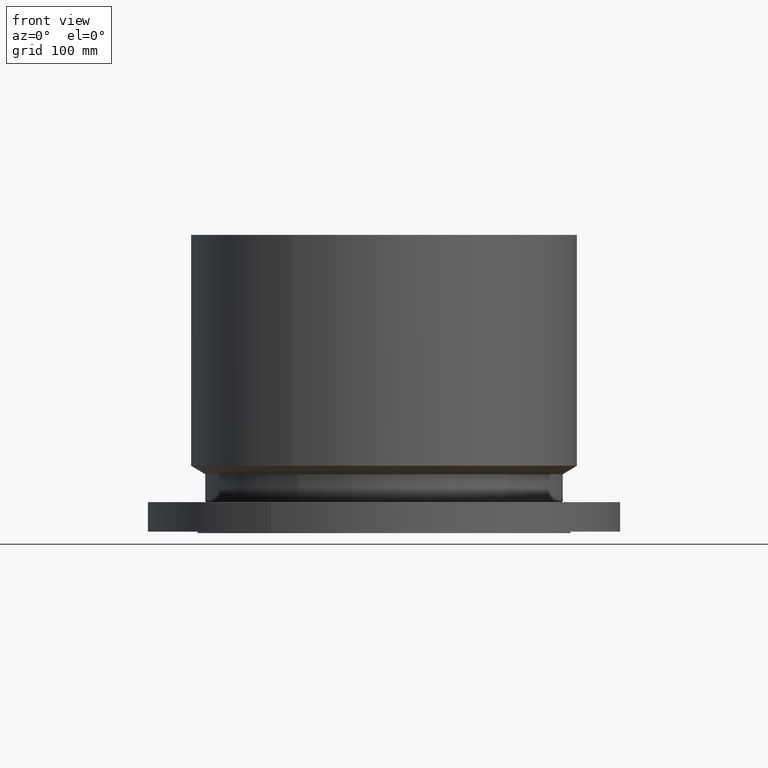
[diagram: clean part render]
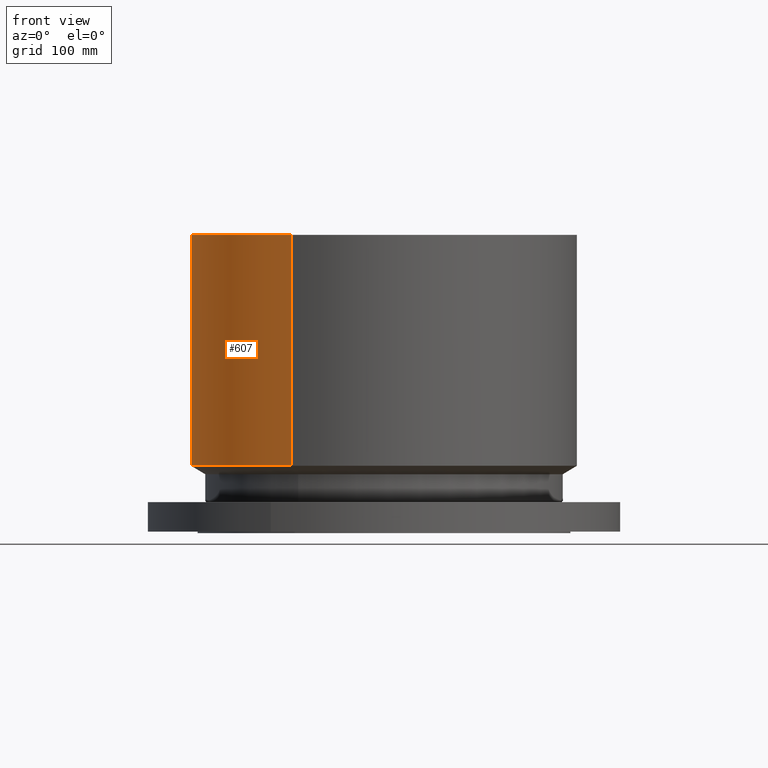
[diagram: same view with one face highlighted and labeled with its STEP entity id]
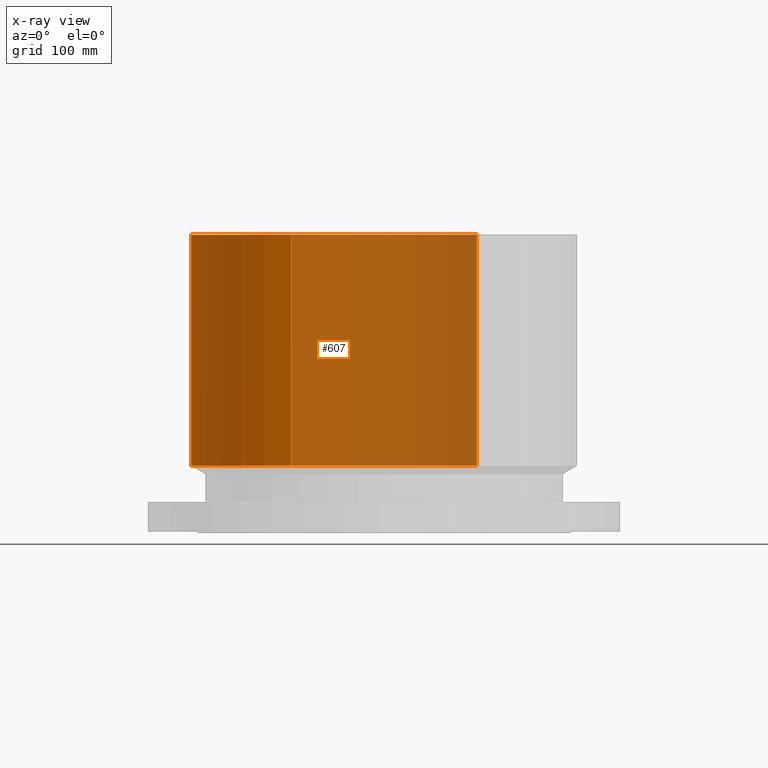
[diagram: x-ray of the same camera — body ghosted, the highlighted face saturated]
A machine part, front view. The second image highlights one B-rep face of the part: STEP entity #607.
The next image is the same camera in x-ray: the body ghosted, the highlighted face saturated — about 65% of this face is hidden behind the body in this view.
In plain terms, the highlighted cylindrical surface (partial cylindrical patch) has radius 197.612 mm, axis along (0, 0, -1).
Its self-contained STEP definition (entity closure, byte-faithful):
#555=AXIS2_PLACEMENT_3D('Circle Axis2P3D',#553,#554,$) ;
#568=AXIS2_PLACEMENT_3D('Cylinder Axis2P3D',#565,#566,#567) ;
#598=AXIS2_PLACEMENT_3D('Circle Axis2P3D',#596,#597,$) ;
#531=CARTESIAN_POINT('Vertex',(3.72993069036,6.82759233153,2.64813665883)) ;
#538=CARTESIAN_POINT('Vertex',(-3.72993069036,-6.82759233153,2.64813665883)) ;
#553=CARTESIAN_POINT('Axis2P3D Location',(0.,0.,2.64813665883)) ;
#565=CARTESIAN_POINT('Axis2P3D Location',(0.,0.,5.93750000002)) ;
#570=CARTESIAN_POINT('Line Origine',(3.72993069036,6.82759233153,7.29281832944)) ;
#574=CARTESIAN_POINT('Vertex',(3.72993069036,6.82759233153,11.9375)) ;
#581=CARTESIAN_POINT('Vertex',(-3.72993069036,-6.82759233153,11.9375)) ;
#584=CARTESIAN_POINT('Line Origine',(-3.72993069036,-6.82759233153,7.29281832944)) ;
#596=CARTESIAN_POINT('Axis2P3D Location',(0.,0.,11.9375)) ;
#554=DIRECTION('Axis2P3D Direction',(-0.,0.,0.0393700787402)) ;
#566=DIRECTION('Axis2P3D Direction',(0.,0.,-0.0393700787402)) ;
#567=DIRECTION('Axis2P3D XDirection',(-0.0188750212049,-0.0345504945626,0.)) ;
#571=DIRECTION('Vector Direction',(0.,0.,-0.0393700787402)) ;
#585=DIRECTION('Vector Direction',(0.,0.,-0.0393700787402)) ;
#597=DIRECTION('Axis2P3D Direction',(0.,0.,-0.0393700787402)) ;
#572=VECTOR('Line Direction',#571,0.0393700787402) ;
#586=VECTOR('Line Direction',#585,0.0393700787402) ;
#602=ORIENTED_EDGE('',*,*,#557,.F.) ;
#603=ORIENTED_EDGE('',*,*,#588,.T.) ;
#604=ORIENTED_EDGE('',*,*,#600,.T.) ;
#605=ORIENTED_EDGE('',*,*,#576,.F.) ;
#607=ADVANCED_FACE('PartBody',(#606),#569,.T.) ;
#556=CIRCLE('generated circle',#555,7.78000000003) ;
#599=CIRCLE('generated circle',#598,7.78000000003) ;
#569=CYLINDRICAL_SURFACE('generated cylinder',#568,7.78000000003) ;
#557=EDGE_CURVE('',#539,#532,#556,.F.) ;
#576=EDGE_CURVE('',#532,#575,#573,.F.) ;
#588=EDGE_CURVE('',#539,#582,#587,.F.) ;
#600=EDGE_CURVE('',#582,#575,#599,.T.) ;
#601=EDGE_LOOP('',(#602,#603,#604,#605)) ;
#606=FACE_OUTER_BOUND('',#601,.T.) ;
#573=LINE('Line',#570,#572) ;
#587=LINE('Line',#584,#586) ;
#532=VERTEX_POINT('',#531) ;
#539=VERTEX_POINT('',#538) ;
#575=VERTEX_POINT('',#574) ;
#582=VERTEX_POINT('',#581) ;